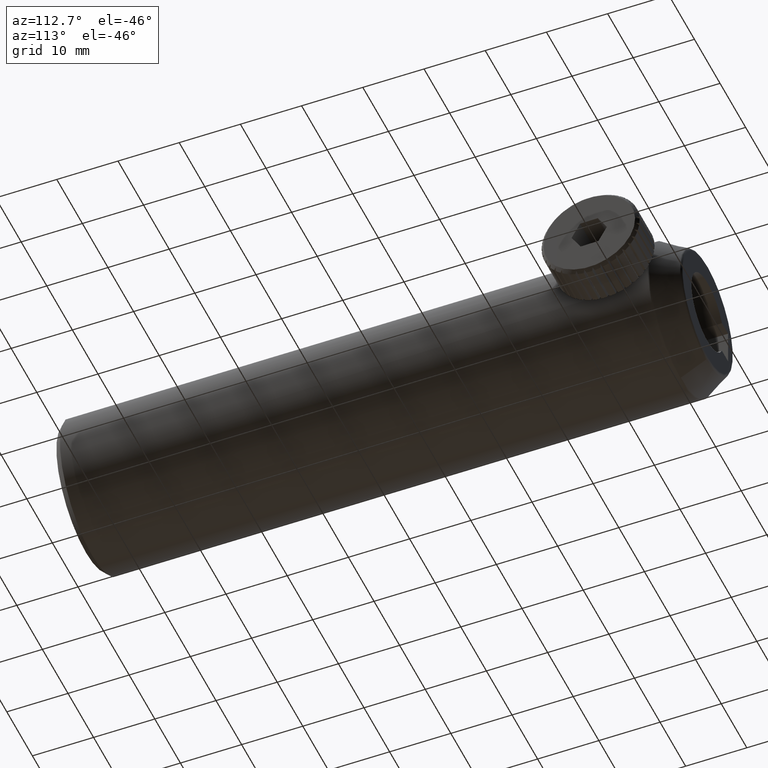
[diagram: clean part render]
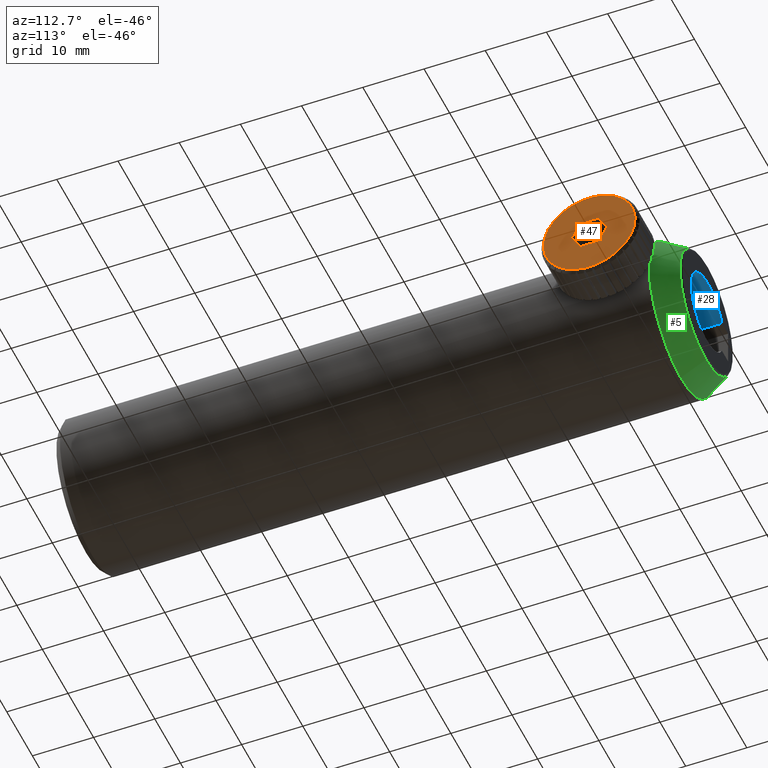
[diagram: same view with three faces highlighted in distinct colors, each labeled with its STEP entity id]
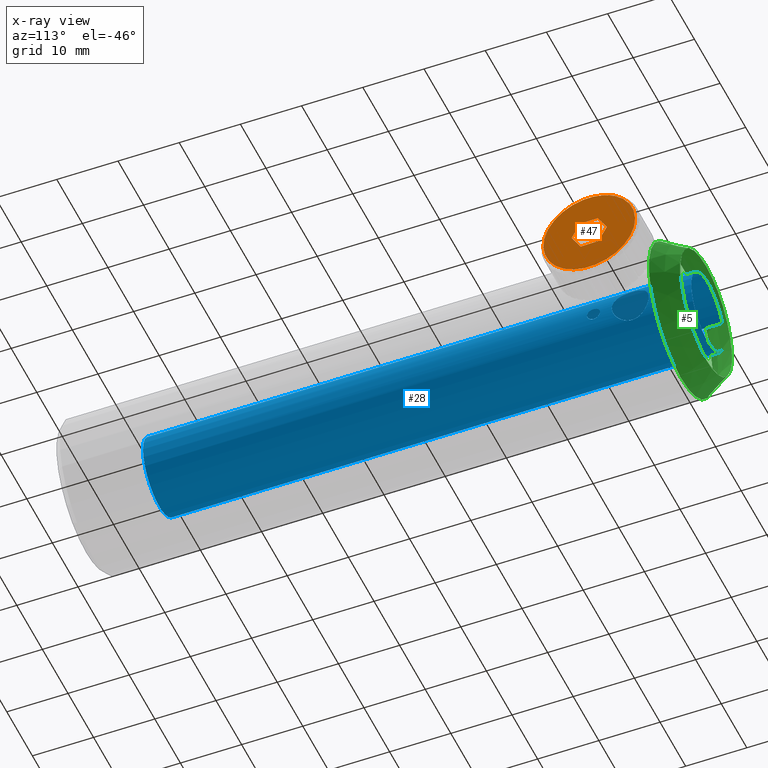
[diagram: x-ray of the same camera — body ghosted, the three highlighted faces saturated]
A machine part, auxiliary view with three faces highlighted in distinct colors.
The next image is the same camera in x-ray (body ghosted, the three faces saturated) — at least one of them is partly hidden behind the body in this view.
Their STEP definitions:

[orange] entity #47 — the highlighted planar face has unit normal (-1, -0, -0).
#47 = ADVANCED_FACE ( 'NONE', ( #4360, #4365 ), #2186, .F. ) ;
#235 = CARTESIAN_POINT ( 'NONE',  ( 16.19006719075495900, 77.77500257026568400, 3.345390032994857600 ) ) ;
#496 = AXIS2_PLACEMENT_3D ( 'NONE', #2188, #2193, #2194 ) ;
#551 = CARTESIAN_POINT ( 'NONE',  ( 16.19006719075495900, 87.37378956775832300, 0.05464135171838555700 ) ) ;
#560 = DIRECTION ( 'NONE',  ( 7.441152863766531900E-018, -0.5163028271717021700, 0.8564060898046600400 ) ) ;
#563 = CARTESIAN_POINT ( 'NONE',  ( 16.19006719075495900, 85.97799328387404200, -2.472231432421757800 ) ) ;
#565 = DIRECTION ( 'NONE',  ( 1.386536222915799600E-017, 0.4835180161406819600, 0.8753344092787505000 ) ) ;
#569 = CARTESIAN_POINT ( 'NONE',  ( 16.19006719075495900, 83.09175911873502700, -2.526872784140123500 ) ) ;
#571 = DIRECTION ( 'NONE',  ( 6.424209365391459200E-018, 0.9998208433123839700, 0.01892831947409006800 ) ) ;
#575 = CARTESIAN_POINT ( 'NONE',  ( 16.19006719075495900, 81.60132123748029200, -0.05464135171834695600 ) ) ;
#577 = DIRECTION ( 'NONE',  ( -7.441152863766530400E-018, 0.5163028271717021700, -0.8564060898046600400 ) ) ;
#581 = CARTESIAN_POINT ( 'NONE',  ( 16.19006719075495900, 82.99711752136457200, 2.472231432421796900 ) ) ;
#583 = DIRECTION ( 'NONE',  ( -1.386536222915799500E-017, -0.4835180161406819600, -0.8753344092787505000 ) ) ;
#587 = CARTESIAN_POINT ( 'NONE',  ( 16.19006719075495900, 85.88335168650358800, 2.526872784140162600 ) ) ;
#588 = DIRECTION ( 'NONE',  ( -6.424209365391457600E-018, -0.9998208433123839700, -0.01892831947408995700 ) ) ;
#592 = CARTESIAN_POINT ( 'NONE',  ( 16.19006719075495900, 84.48755540261930700, 1.951563910473908000E-014 ) ) ;
#593 = DIRECTION ( 'NONE',  ( 1.000000000000000000, 4.333342374871280700E-033, -0.0000000000000000000 ) ) ;
#594 = DIRECTION ( 'NONE',  ( 0.0000000000000000000, -0.8950070443138177200, 0.4460520043993120900 ) ) ;
#1388 = EDGE_LOOP ( 'NONE', ( #2370, #2371, #2372, #2373, #2374, #2375 ) ) ;
#1390 = EDGE_LOOP ( 'NONE', ( #2376 ) ) ;
#1631 = VERTEX_POINT ( 'NONE', #3221 ) ;
#1632 = VERTEX_POINT ( 'NONE', #3222 ) ;
#1634 = VERTEX_POINT ( 'NONE', #3223 ) ;
#1635 = VERTEX_POINT ( 'NONE', #3227 ) ;
#1637 = VERTEX_POINT ( 'NONE', #3228 ) ;
#1638 = VERTEX_POINT ( 'NONE', #3225 ) ;
#2186 = PLANE ( 'NONE',  #496 ) ;
#2188 = CARTESIAN_POINT ( 'NONE',  ( 16.19006719075495900, 84.48755540261930700, 1.951563910473908000E-014 ) ) ;
#2193 = DIRECTION ( 'NONE',  ( -1.000000000000000000, -8.621721583167947700E-034, -1.729955582519897400E-033 ) ) ;
#2194 = DIRECTION ( 'NONE',  ( 0.0000000000000000000, -0.8950070443138178300, 0.4460520043993119700 ) ) ;
#2370 = ORIENTED_EDGE ( 'NONE', *, *, #4016, .F. ) ;
#2371 = ORIENTED_EDGE ( 'NONE', *, *, #4002, .F. ) ;
#2372 = ORIENTED_EDGE ( 'NONE', *, *, #4004, .F. ) ;
#2373 = ORIENTED_EDGE ( 'NONE', *, *, #4007, .F. ) ;
#2374 = ORIENTED_EDGE ( 'NONE', *, *, #4010, .F. ) ;
#2375 = ORIENTED_EDGE ( 'NONE', *, *, #4013, .F. ) ;
#2376 = ORIENTED_EDGE ( 'NONE', *, *, #4018, .T. ) ;
#2891 = AXIS2_PLACEMENT_3D ( 'NONE', #592, #593, #594 ) ;
#3221 = CARTESIAN_POINT ( 'NONE',  ( 16.19006719075495900, 87.37378956775832300, 0.05464135171838555700 ) ) ;
#3222 = CARTESIAN_POINT ( 'NONE',  ( 16.19006719075495900, 85.97799328387404200, -2.472231432421757800 ) ) ;
#3223 = CARTESIAN_POINT ( 'NONE',  ( 16.19006719075495900, 82.99711752136457200, 2.472231432421796900 ) ) ;
#3225 = CARTESIAN_POINT ( 'NONE',  ( 16.19006719075495900, 81.60132123748029200, -0.05464135171834695600 ) ) ;
#3227 = CARTESIAN_POINT ( 'NONE',  ( 16.19006719075495900, 85.88335168650358800, 2.526872784140162600 ) ) ;
#3228 = CARTESIAN_POINT ( 'NONE',  ( 16.19006719075495900, 83.09175911873502700, -2.526872784140123500 ) ) ;
#3824 = VERTEX_POINT ( 'NONE', #235 ) ;
#4002 = EDGE_CURVE ( 'NONE', #1631, #1635, #4876, .T. ) ;
#4004 = EDGE_CURVE ( 'NONE', #1632, #1631, #4881, .T. ) ;
#4007 = EDGE_CURVE ( 'NONE', #1637, #1632, #4886, .T. ) ;
#4010 = EDGE_CURVE ( 'NONE', #1638, #1637, #4892, .T. ) ;
#4013 = EDGE_CURVE ( 'NONE', #1634, #1638, #4898, .T. ) ;
#4016 = EDGE_CURVE ( 'NONE', #1635, #1634, #4904, .T. ) ;
#4018 = EDGE_CURVE ( 'NONE', #3824, #3824, #4908, .T. ) ;
#4360 = FACE_BOUND ( 'NONE', #1388, .T. ) ;
#4365 = FACE_OUTER_BOUND ( 'NONE', #1390, .T. ) ;
#4876 = LINE ( 'NONE', #551, #4880 ) ;
#4880 = VECTOR ( 'NONE', #560, 1000.000000000000000 ) ;
#4881 = LINE ( 'NONE', #563, #4883 ) ;
#4883 = VECTOR ( 'NONE', #565, 1000.000000000000100 ) ;
#4886 = LINE ( 'NONE', #569, #4889 ) ;
#4889 = VECTOR ( 'NONE', #571, 1000.000000000000100 ) ;
#4892 = LINE ( 'NONE', #575, #4895 ) ;
#4895 = VECTOR ( 'NONE', #577, 1000.000000000000100 ) ;
#4898 = LINE ( 'NONE', #581, #4901 ) ;
#4901 = VECTOR ( 'NONE', #583, 1000.000000000000200 ) ;
#4904 = LINE ( 'NONE', #587, #4907 ) ;
#4907 = VECTOR ( 'NONE', #588, 1000.000000000000100 ) ;
#4908 = CIRCLE ( 'NONE', #2891, 7.499999999999993800 ) ;

[blue] entity #28 — the highlighted cylindrical surface (partial cylindrical patch) has radius 6.35 mm, axis along (-0, 1, -0).
#28 = ADVANCED_FACE ( 'NONE', ( #4328, #4334, #4326 ), #4337, .F. ) ;
#209 = CARTESIAN_POINT ( 'NONE',  ( -0.5531502516744404300, 84.48755540261932100, 3.000000000000005300 ) ) ;
#215 = CARTESIAN_POINT ( 'NONE',  ( 0.1127862888916260400, 78.48755540261929300, -1.049999999999998000 ) ) ;
#261 = CARTESIAN_POINT ( 'NONE',  ( 0.06070963017859216200, 81.79449923349962100, 1.336472818966667000 ) ) ;
#262 = CARTESIAN_POINT ( 'NONE',  ( 0.02001082002536895600, 81.88873798547921000, 1.511233564953388100 ) ) ;
#263 = CARTESIAN_POINT ( 'NONE',  ( -0.06797955846077347000, 82.10515616790579000, 1.833535585122064700 ) ) ;
#264 = CARTESIAN_POINT ( 'NONE',  ( -0.1157396609785020200, 82.22834666664076100, 1.983433371258664900 ) ) ;
#265 = CARTESIAN_POINT ( 'NONE',  ( -0.2134900429234202200, 82.50414529834265000, 2.259229162612203200 ) ) ;
#266 = CARTESIAN_POINT ( 'NONE',  ( -0.2622043957584848100, 82.65318892974399000, 2.381689739763168700 ) ) ;
#267 = CARTESIAN_POINT ( 'NONE',  ( -0.3541157926048031900, 82.97392612199524800, 2.597358807354058100 ) ) ;
#268 = CARTESIAN_POINT ( 'NONE',  ( -0.3977608676777139600, 83.14783228792937600, 2.691397524595371000 ) ) ;
#269 = CARTESIAN_POINT ( 'NONE',  ( -0.4711302032135290000, 83.50970349501599800, 2.842935860379052700 ) ) ;
#270 = CARTESIAN_POINT ( 'NONE',  ( -0.5008435554850807500, 83.69679581455669400, 2.900646200917368100 ) ) ;
#271 = CARTESIAN_POINT ( 'NONE',  ( -0.5419322982237502200, 84.08410541862120600, 2.979308177987167300 ) ) ;
#272 = CARTESIAN_POINT ( 'NONE',  ( -0.5531502516744405400, 84.28616768541336100, 3.000000000000006200 ) ) ;
#273 = CARTESIAN_POINT ( 'NONE',  ( -0.5531502516744404300, 84.48755540261932100, 3.000000000000005300 ) ) ;
#477 = AXIS2_PLACEMENT_3D ( 'NONE', #2849, #2850, #2848 ) ;
#1141 = VERTEX_POINT ( 'NONE', #3861 ) ;
#1144 = VERTEX_POINT ( 'NONE', #3215 ) ;
#1146 = VERTEX_POINT ( 'NONE', #3217 ) ;
#1148 = VERTEX_POINT ( 'NONE', #3219 ) ;
#1519 = EDGE_LOOP ( 'NONE', ( #2117, #2116, #2115, #2114 ) ) ;
#1524 = EDGE_LOOP ( 'NONE', ( #2118 ) ) ;
#1525 = EDGE_LOOP ( 'NONE', ( #2113 ) ) ;
#1851 = EDGE_CURVE ( 'NONE', #1146, #1141, #2561, .T. ) ;
#1852 = EDGE_CURVE ( 'NONE', #3798, #3798, #4025, .T. ) ;
#1853 = EDGE_CURVE ( 'NONE', #1148, #1141, #2556, .T. ) ;
#1854 = EDGE_CURVE ( 'NONE', #1144, #1146, #2563, .T. ) ;
#1855 = EDGE_CURVE ( 'NONE', #1144, #1148, #2558, .T. ) ;
#1856 = EDGE_CURVE ( 'NONE', #3803, #3803, #4026, .T. ) ;
#2010 = CARTESIAN_POINT ( 'NONE',  ( -11.74645182002325100, 4.887555402619320000, -2.999999999999999600 ) ) ;
#2011 = CARTESIAN_POINT ( 'NONE',  ( 0.1127862888916260100, 78.62654747030333600, -1.049999999999997800 ) ) ;
#2016 = CARTESIAN_POINT ( 'NONE',  ( -11.74645182002325100, 4.887555402619320000, 2.999999999999995100 ) ) ;
#2017 = DIRECTION ( 'NONE',  ( -0.0000000000000000000, 1.000000000000000000, -0.0000000000000000000 ) ) ;
#2018 = CARTESIAN_POINT ( 'NONE',  ( 0.1127862888916260500, 78.48755540261927900, -1.049999999999998000 ) ) ;
#2019 = CARTESIAN_POINT ( 'NONE',  ( 0.1175538740577712800, 78.76291736459103300, -1.022551045693601100 ) ) ;
#2020 = CARTESIAN_POINT ( 'NONE',  ( 0.1338553941838880300, 79.01710688648276500, -0.9170660156651400100 ) ) ;
#2021 = CARTESIAN_POINT ( 'NONE',  ( 0.1452721232226433200, 79.13343532796955100, -0.8390661729969871600 ) ) ;
#2022 = CARTESIAN_POINT ( 'NONE',  ( 0.1680358082486044800, 79.32676764546572200, -0.6456901207970255900 ) ) ;
#2023 = CARTESIAN_POINT ( 'NONE',  ( 0.1794131331572389500, 79.40496162320273800, -0.5287358776458186400 ) ) ;
#2024 = CARTESIAN_POINT ( 'NONE',  ( 0.1954532670500679600, 79.50977570415652500, -0.2761547700114842500 ) ) ;
#2025 = CARTESIAN_POINT ( 'NONE',  ( 0.2001859288071988800, 79.53747656981229900, -0.1378173337657058500 ) ) ;
#2026 = CARTESIAN_POINT ( 'NONE',  ( 0.2002119424379833200, 79.53763389036647900, 0.1366134853402463700 ) ) ;
#2027 = CARTESIAN_POINT ( 'NONE',  ( 0.1955516781808879200, 79.51040037181289200, 0.2743394300279338700 ) ) ;
#2028 = CARTESIAN_POINT ( 'NONE',  ( 0.1794205380037131600, 79.40502828858420500, 0.5288832171584719700 ) ) ;
#2029 = CARTESIAN_POINT ( 'NONE',  ( 0.1681806591594698600, 79.32798082375902000, 0.6444420786181572800 ) ) ;
#2030 = CARTESIAN_POINT ( 'NONE',  ( 0.1451581703907593400, 79.13248454466396700, 0.8400517144397006100 ) ) ;
#2031 = CARTESIAN_POINT ( 'NONE',  ( 0.1338441040072457800, 79.01695035671109200, 0.9171405066267581700 ) ) ;
#2032 = CARTESIAN_POINT ( 'NONE',  ( 0.1175571969555302300, 78.76294965107334200, 1.022528109262467000 ) ) ;
#2033 = CARTESIAN_POINT ( 'NONE',  ( 0.1127953020863197200, 78.62513180593018100, 1.049946241977824300 ) ) ;
#2034 = CARTESIAN_POINT ( 'NONE',  ( 0.1127773026570313700, 78.35080080214073900, 1.050053597222193600 ) ) ;
#2035 = CARTESIAN_POINT ( 'NONE',  ( 0.1175582044587099200, 78.21240751252588600, 1.022502414864851600 ) ) ;
#2036 = CARTESIAN_POINT ( 'NONE',  ( 0.1337361368982747900, 77.95958389235640600, 0.9178581775950344100 ) ) ;
#2037 = CARTESIAN_POINT ( 'NONE',  ( 0.1451673029532491400, 77.84266625170191400, 0.8398535081107606500 ) ) ;
#2038 = CARTESIAN_POINT ( 'NONE',  ( 0.1679574536873570400, 77.64890889630272900, 0.6464580183584959200 ) ) ;
#2039 = CARTESIAN_POINT ( 'NONE',  ( 0.1792861826826464000, 77.57099650155409200, 0.5304802696492628700 ) ) ;
#2040 = CARTESIAN_POINT ( 'NONE',  ( 0.1954785366912040200, 77.46515232504312100, 0.2760099320166146100 ) ) ;
#2041 = CARTESIAN_POINT ( 'NONE',  ( 0.2001804198286567800, 77.43766755165262300, 0.1396097649219692500 ) ) ;
#2042 = CARTESIAN_POINT ( 'NONE',  ( 0.2002173957539396500, 77.43744393527194300, -0.1379177008749866400 ) ) ;
#2043 = CARTESIAN_POINT ( 'NONE',  ( 0.1955342158438806400, 77.46482407102773500, -0.2746212130955568700 ) ) ;
#2044 = CARTESIAN_POINT ( 'NONE',  ( 0.1794355118624461900, 77.56998513439512500, -0.5286407004498585600 ) ) ;
#2045 = CARTESIAN_POINT ( 'NONE',  ( 0.1680859281976527500, 77.64797849105551100, -0.6452014765189320000 ) ) ;
#2046 = CARTESIAN_POINT ( 'NONE',  ( 0.1453337888938542600, 77.84109104811035700, -0.8386048974830678800 ) ) ;
#2047 = CARTESIAN_POINT ( 'NONE',  ( 0.1338727798570046900, 77.95799765298541200, -0.9169339850863471600 ) ) ;
#2048 = CARTESIAN_POINT ( 'NONE',  ( 0.1176449637270302300, 78.21051001715041200, -1.021981016259108300 ) ) ;
#2049 = CARTESIAN_POINT ( 'NONE',  ( 0.1127862888916260900, 78.34856333493522100, -1.049999999999998500 ) ) ;
#2050 = CARTESIAN_POINT ( 'NONE',  ( 0.1127862888916260500, 78.48755540261927900, -1.049999999999998000 ) ) ;
#2051 = DIRECTION ( 'NONE',  ( -0.0000000000000000000, 1.000000000000000000, -0.0000000000000000000 ) ) ;
#2052 = CARTESIAN_POINT ( 'NONE',  ( -6.149801035848844900, 94.48755540261930700, 5.421010862427522200E-016 ) ) ;
#2053 = DIRECTION ( 'NONE',  ( 0.0000000000000000000, 1.000000000000000000, 0.0000000000000000000 ) ) ;
#2054 = DIRECTION ( 'NONE',  ( 0.0000000000000000000, 0.0000000000000000000, 1.000000000000000000 ) ) ;
#2056 = CARTESIAN_POINT ( 'NONE',  ( -0.5531502516744403200, 84.68894311982526800, 3.000000000000004900 ) ) ;
#2057 = CARTESIAN_POINT ( 'NONE',  ( -6.149801035848844900, 4.887555402619320000, 5.421010862427522200E-016 ) ) ;
#2058 = DIRECTION ( 'NONE',  ( 0.0000000000000000000, 1.000000000000000000, 0.0000000000000000000 ) ) ;
#2059 = DIRECTION ( 'NONE',  ( 0.0000000000000000000, 0.0000000000000000000, 1.000000000000000000 ) ) ;
#2060 = CARTESIAN_POINT ( 'NONE',  ( -0.5531502516744404300, 84.48755540261932100, 3.000000000000005300 ) ) ;
#2061 = CARTESIAN_POINT ( 'NONE',  ( -0.5422685697541117500, 84.88625305992242400, 2.979935098424566900 ) ) ;
#2062 = CARTESIAN_POINT ( 'NONE',  ( -0.5015377185806070300, 85.27331488543224200, 2.901991565792551700 ) ) ;
#2063 = CARTESIAN_POINT ( 'NONE',  ( -0.4711932425889611100, 85.46499024655250300, 2.843056039639032300 ) ) ;
#2064 = CARTESIAN_POINT ( 'NONE',  ( -0.3979850996744598300, 85.82627828958747800, 2.691870641500114600 ) ) ;
#2065 = CARTESIAN_POINT ( 'NONE',  ( -0.3552021470451700600, 85.99715604087148800, 2.599815228174495700 ) ) ;
#2066 = CARTESIAN_POINT ( 'NONE',  ( -0.2626400154835228900, 86.32063551123305000, 2.382803102034225500 ) ) ;
#2067 = CARTESIAN_POINT ( 'NONE',  ( -0.2134507766413512000, 86.47098480934789700, 2.259000875290208200 ) ) ;
#2068 = CARTESIAN_POINT ( 'NONE',  ( -0.1169261859016622500, 86.74350681313502800, 1.986897178877044000 ) ) ;
#2069 = CARTESIAN_POINT ( 'NONE',  ( -0.06887632126049538000, 86.86769347835989700, 1.836585008827334300 ) ) ;
#2070 = CARTESIAN_POINT ( 'NONE',  ( 0.01968046385120926500, 87.08561503439059900, 1.512675743178117700 ) ) ;
#2071 = CARTESIAN_POINT ( 'NONE',  ( 0.05950747701316422300, 87.17783579369637400, 1.341836234649429900 ) ) ;
#2072 = CARTESIAN_POINT ( 'NONE',  ( 0.1265185652735926500, 87.32908388393823900, 0.9817580929562332900 ) ) ;
#2073 = CARTESIAN_POINT ( 'NONE',  ( 0.1539093199242504400, 87.38849980015618300, 0.7898370028870981300 ) ) ;
#2074 = CARTESIAN_POINT ( 'NONE',  ( 0.1905218739281700800, 87.46722128126455700, 0.4011385550746318100 ) ) ;
#2075 = CARTESIAN_POINT ( 'NONE',  ( 0.2000341767571994500, 87.48720660223328600, 0.2043889757651026200 ) ) ;
#2076 = CARTESIAN_POINT ( 'NONE',  ( 0.2003595171123326000, 87.48789524011743900, -0.1940181235909386500 ) ) ;
#2077 = CARTESIAN_POINT ( 'NONE',  ( 0.1908534898148854200, 87.46792179322490300, -0.3956501949236555500 ) ) ;
#2078 = CARTESIAN_POINT ( 'NONE',  ( 0.1546836046025597000, 87.39017673343720100, -0.7835255636387336000 ) ) ;
#2079 = CARTESIAN_POINT ( 'NONE',  ( 0.1278485061401442900, 87.33203169814480300, -0.9736665999007878500 ) ) ;
#2080 = CARTESIAN_POINT ( 'NONE',  ( 0.06030490078087012000, 87.17968789711795800, -1.338467285977994500 ) ) ;
#2081 = CARTESIAN_POINT ( 'NONE',  ( 0.02034011138162124600, 87.08715591454991100, -1.509913196457722600 ) ) ;
#2082 = CARTESIAN_POINT ( 'NONE',  ( -0.06770967387431707500, 86.87064507367421100, -1.832660443775251200 ) ) ;
#2083 = CARTESIAN_POINT ( 'NONE',  ( -0.1161308705797825700, 86.74563767253781100, -1.984507923284938500 ) ) ;
#2084 = CARTESIAN_POINT ( 'NONE',  ( -0.2128131533762902000, 86.47289794008942500, -2.257348498617956200 ) ) ;
#2085 = CARTESIAN_POINT ( 'NONE',  ( -0.2614863691224306200, 86.32432806259680500, -2.379965912900859700 ) ) ;
#2086 = CARTESIAN_POINT ( 'NONE',  ( -0.3541926714055347300, 86.00101518208516900, -2.597577919322183500 ) ) ;
#2087 = CARTESIAN_POINT ( 'NONE',  ( -0.3974203815715007200, 85.82853654833530800, -2.690654279141285100 ) ) ;
#2088 = CARTESIAN_POINT ( 'NONE',  ( -0.4703271960458339000, 85.46978263624114900, -2.841316692056482300 ) ) ;
#2089 = CARTESIAN_POINT ( 'NONE',  ( -0.5004765760649997300, 85.28148515957399000, -2.899940515935105700 ) ) ;
#2090 = CARTESIAN_POINT ( 'NONE',  ( -0.5421105417189302500, 84.88961296693196300, -2.979652525030223900 ) ) ;
#2091 = CARTESIAN_POINT ( 'NONE',  ( -0.5529093375765943300, 84.69250767175782400, -2.999550561216064900 ) ) ;
#2092 = CARTESIAN_POINT ( 'NONE',  ( -0.5533831741316166400, 84.29597869896305400, -3.000434529952756600 ) ) ;
#2093 = CARTESIAN_POINT ( 'NONE',  ( -0.5426701431456229000, 84.09405772401635200, -2.980689172121556900 ) ) ;
#2094 = CARTESIAN_POINT ( 'NONE',  ( -0.5020199839241208400, 83.70502464562692100, -2.902928517588675200 ) ) ;
#2095 = CARTESIAN_POINT ( 'NONE',  ( -0.4723991357792469100, 83.51687677354596000, -2.845471046101333300 ) ) ;
#2096 = CARTESIAN_POINT ( 'NONE',  ( -0.3989063545282359200, 83.15259686331270900, -2.693846352981777800 ) ) ;
#2097 = CARTESIAN_POINT ( 'NONE',  ( -0.3557321379762316000, 82.98006872946049800, -2.600956424350670200 ) ) ;
#2098 = CARTESIAN_POINT ( 'NONE',  ( -0.2637878334655934200, 82.65822954452657700, -2.385593698859015600 ) ) ;
#2099 = CARTESIAN_POINT ( 'NONE',  ( -0.2142812299179525100, 82.50656212166046500, -2.261224983020017300 ) ) ;
#2100 = CARTESIAN_POINT ( 'NONE',  ( -0.1172341229882172700, 82.23238299884461400, -1.987880839560303100 ) ) ;
#2101 = CARTESIAN_POINT ( 'NONE',  ( -0.06972920714236902100, 82.10960761398979500, -1.839319626619858200 ) ) ;
#2102 = CARTESIAN_POINT ( 'NONE',  ( 0.01851752532470362500, 81.89226811306231500, -1.517305591824208000 ) ) ;
#2103 = CARTESIAN_POINT ( 'NONE',  ( 0.05936502259736636800, 81.79760059606007900, -1.342531288476910900 ) ) ;
#2104 = CARTESIAN_POINT ( 'NONE',  ( 0.1264979643697771200, 81.64606937236752100, -0.9819390315873283100 ) ) ;
#2105 = CARTESIAN_POINT ( 'NONE',  ( 0.1533507089282151700, 81.58782040586285700, -0.7944911552416255000 ) ) ;
#2106 = CARTESIAN_POINT ( 'NONE',  ( 0.1903581236602717200, 81.50823344928242900, -0.4041286249895221800 ) ) ;
#2107 = CARTESIAN_POINT ( 'NONE',  ( 0.2000361078817617900, 81.48790011544774400, -0.2034997264719632400 ) ) ;
#2108 = CARTESIAN_POINT ( 'NONE',  ( 0.2003576487606852100, 81.48721951980928700, 0.1932060321346026900 ) ) ;
#2109 = CARTESIAN_POINT ( 'NONE',  ( 0.1910474004567115600, 81.50677313213786600, 0.3934235488252402800 ) ) ;
#2110 = CARTESIAN_POINT ( 'NONE',  ( 0.1545715596449761500, 81.58517398822326100, 0.7848739759702634300 ) ) ;
#2111 = CARTESIAN_POINT ( 'NONE',  ( 0.1278814078320577900, 81.64301578066070400, 0.9732961856381837600 ) ) ;
#2113 = ORIENTED_EDGE ( 'NONE', *, *, #1856, .F. ) ;
#2114 = ORIENTED_EDGE ( 'NONE', *, *, #1855, .T. ) ;
#2115 = ORIENTED_EDGE ( 'NONE', *, *, #1854, .F. ) ;
#2116 = ORIENTED_EDGE ( 'NONE', *, *, #1851, .F. ) ;
#2117 = ORIENTED_EDGE ( 'NONE', *, *, #1853, .T. ) ;
#2118 = ORIENTED_EDGE ( 'NONE', *, *, #1852, .T. ) ;
#2556 = CIRCLE ( 'NONE', #4471, 6.349999999999999600 ) ;
#2558 = LINE ( 'NONE', #2016, #2564 ) ;
#2559 = VECTOR ( 'NONE', #2017, 1000.000000000000000 ) ;
#2561 = LINE ( 'NONE', #2010, #2559 ) ;
#2563 = CIRCLE ( 'NONE', #4472, 6.349999999999999600 ) ;
#2564 = VECTOR ( 'NONE', #2051, 1000.000000000000000 ) ;
#2848 = DIRECTION ( 'NONE',  ( 0.0000000000000000000, 0.0000000000000000000, 1.000000000000000000 ) ) ;
#2849 = CARTESIAN_POINT ( 'NONE',  ( -6.149801035848844900, 4.887555402619320000, 5.421010862427522200E-016 ) ) ;
#2850 = DIRECTION ( 'NONE',  ( -0.0000000000000000000, 1.000000000000000000, -0.0000000000000000000 ) ) ;
#3215 = CARTESIAN_POINT ( 'NONE',  ( -11.74645182002325100, 4.887555402619320000, 2.999999999999995100 ) ) ;
#3217 = CARTESIAN_POINT ( 'NONE',  ( -11.74645182002325100, 4.887555402619320000, -2.999999999999999600 ) ) ;
#3219 = CARTESIAN_POINT ( 'NONE',  ( -11.74645182002325100, 94.48755540261930700, 2.999999999999995100 ) ) ;
#3798 = VERTEX_POINT ( 'NONE', #215 ) ;
#3803 = VERTEX_POINT ( 'NONE', #209 ) ;
#3861 = CARTESIAN_POINT ( 'NONE',  ( -11.74645182002325100, 94.48755540261930700, -2.999999999999999600 ) ) ;
#4025 = B_SPLINE_CURVE_WITH_KNOTS ( 'NONE', 3,
 ( #2018, #2011, #2019, #2020, #2021, #2022, #2023, #2024, #2025, #2026, #2027, #2028, #2029, #2030, #2031, #2032, #2033, #2034, #2035, #2036, #2037, #2038, #2039, #2040, #2041, #2042, #2043, #2044, #2045, #2046, #2047, #2048, #2049, #2050 ),
 .UNSPECIFIED., .T., .F.,
 ( 4, 2, 2, 2, 2, 2, 2, 2, 2, 2, 2, 2, 2, 2, 2, 2, 4 ),
 ( 0.0000000000000000000, 0.0004110016561635915400, 0.0008220033123271830700, 0.001233004968490774600, 0.001644006624654366100, 0.002055008280817957500, 0.002466009936981549100, 0.002877011593145140700, 0.003288013249308732300, 0.003699014905472323900, 0.004110016561635915000, 0.004521018217799506600, 0.004932019873963098200, 0.005343021530126689800, 0.005754023186290281400, 0.006165024842453873000, 0.006576026498617464600 ),
 .UNSPECIFIED. ) ;
#4026 = B_SPLINE_CURVE_WITH_KNOTS ( 'NONE', 3,
 ( #2060, #2056, #2061, #2062, #2063, #2064, #2065, #2066, #2067, #2068, #2069, #2070, #2071, #2072, #2073, #2074, #2075, #2076, #2077, #2078, #2079, #2080, #2081, #2082, #2083, #2084, #2085, #2086, #2087, #2088, #2089, #2090, #2091, #2092, #2093, #2094, #2095, #2096, #2097, #2098, #2099, #2100, #2101, #2102, #2103, #2104, #2105, #2106, #2107, #2108, #2109, #2110, #2111, #261, #262, #263, #264, #265, #266, #267, #268, #269, #270, #271, #272, #273 ),
 .UNSPECIFIED., .T., .F.,
 ( 4, 2, 2, 2, 2, 2, 2, 2, 2, 2, 2, 2, 2, 2, 2, 2, 2, 2, 2, 2, 2, 2, 2, 2, 2, 2, 2, 2, 2, 2, 2, 2, 4 ),
 ( 0.0000000000000000000, 0.0005947439517974759100, 0.001189487903594951800, 0.001784231855392427700, 0.002378975807189903600, 0.002973719758987379600, 0.003568463710784855500, 0.004163207662582331400, 0.004757951614379807300, 0.005352695566177283200, 0.005947439517974759100, 0.006542183469772235000, 0.007136927421569710900, 0.007731671373367186900, 0.008326415325164662800, 0.008921159276962138700, 0.009515903228759614600, 0.01011064718055709000, 0.01070539113235456600, 0.01130013508415204200, 0.01189487903594951800, 0.01248962298774699400, 0.01308436693954447000, 0.01367911089134194600, 0.01427385484313942200, 0.01486859879493689800, 0.01546334274673437400, 0.01605808669853185000, 0.01665283065032932600, 0.01724757460212680100, 0.01784231855392427700, 0.01843706250572175300, 0.01903180645751922900 ),
 .UNSPECIFIED. ) ;
#4326 = FACE_BOUND ( 'NONE', #1525, .T. ) ;
#4328 = FACE_BOUND ( 'NONE', #1524, .T. ) ;
#4334 = FACE_OUTER_BOUND ( 'NONE', #1519, .T. ) ;
#4337 = CYLINDRICAL_SURFACE ( 'NONE', #477, 6.349999999999999600 ) ;
#4471 = AXIS2_PLACEMENT_3D ( 'NONE', #2052, #2053, #2054 ) ;
#4472 = AXIS2_PLACEMENT_3D ( 'NONE', #2057, #2058, #2059 ) ;

[green] entity #5 — the highlighted conical surface has half-angle 29.055 deg.
#5 = ADVANCED_FACE ( 'NONE', ( #4284, #4278 ), #4289, .T. ) ;
#216 = CARTESIAN_POINT ( 'NONE',  ( -6.149801035848844900, 94.23037686820863700, 10.14287696356150500 ) ) ;
#217 = CARTESIAN_POINT ( 'NONE',  ( -6.149801035848844900, 90.10081385410994400, -12.43707863806077400 ) ) ;
#286 = CARTESIAN_POINT ( 'NONE',  ( -6.149801035848844900, 94.23037686820863700, 5.421010862427522200E-016 ) ) ;
#287 = DIRECTION ( 'NONE',  ( -0.0000000000000000000, -1.000000000000000000, -0.0000000000000000000 ) ) ;
#288 = DIRECTION ( 'NONE',  ( 0.0000000000000000000, 0.0000000000000000000, 1.000000000000000000 ) ) ;
#289 = CARTESIAN_POINT ( 'NONE',  ( -6.149801035848844900, 90.10081385410994400, 5.421010862427522200E-016 ) ) ;
#290 = DIRECTION ( 'NONE',  ( -0.0000000000000000000, 1.000000000000000000, -0.0000000000000000000 ) ) ;
#291 = DIRECTION ( 'NONE',  ( 0.0000000000000000000, 0.0000000000000000000, -1.000000000000000000 ) ) ;
#452 = AXIS2_PLACEMENT_3D ( 'NONE', #2768, #2769, #2766 ) ;
#1523 = EDGE_LOOP ( 'NONE', ( #4252 ) ) ;
#1530 = EDGE_LOOP ( 'NONE', ( #4258 ) ) ;
#1863 = EDGE_CURVE ( 'NONE', #3805, #3805, #2577, .T. ) ;
#1864 = EDGE_CURVE ( 'NONE', #3806, #3806, #2578, .T. ) ;
#2577 = CIRCLE ( 'NONE', #4474, 10.14287696356150500 ) ;
#2578 = CIRCLE ( 'NONE', #4475, 12.43707863806077400 ) ;
#2766 = DIRECTION ( 'NONE',  ( 0.0000000000000000000, 0.0000000000000000000, -1.000000000000000000 ) ) ;
#2768 = CARTESIAN_POINT ( 'NONE',  ( -6.149801035848844900, 94.48755540261930700, 5.421010862427522200E-016 ) ) ;
#2769 = DIRECTION ( 'NONE',  ( 0.0000000000000000000, -1.000000000000000000, 0.0000000000000000000 ) ) ;
#3805 = VERTEX_POINT ( 'NONE', #216 ) ;
#3806 = VERTEX_POINT ( 'NONE', #217 ) ;
#4252 = ORIENTED_EDGE ( 'NONE', *, *, #1864, .T. ) ;
#4258 = ORIENTED_EDGE ( 'NONE', *, *, #1863, .T. ) ;
#4278 = FACE_OUTER_BOUND ( 'NONE', #1523, .T. ) ;
#4284 = FACE_BOUND ( 'NONE', #1530, .T. ) ;
#4289 = CONICAL_SURFACE ( 'NONE', #452, 10.00000000000001600, 0.5070985043923353900 ) ;
#4474 = AXIS2_PLACEMENT_3D ( 'NONE', #286, #287, #288 ) ;
#4475 = AXIS2_PLACEMENT_3D ( 'NONE', #289, #290, #291 ) ;